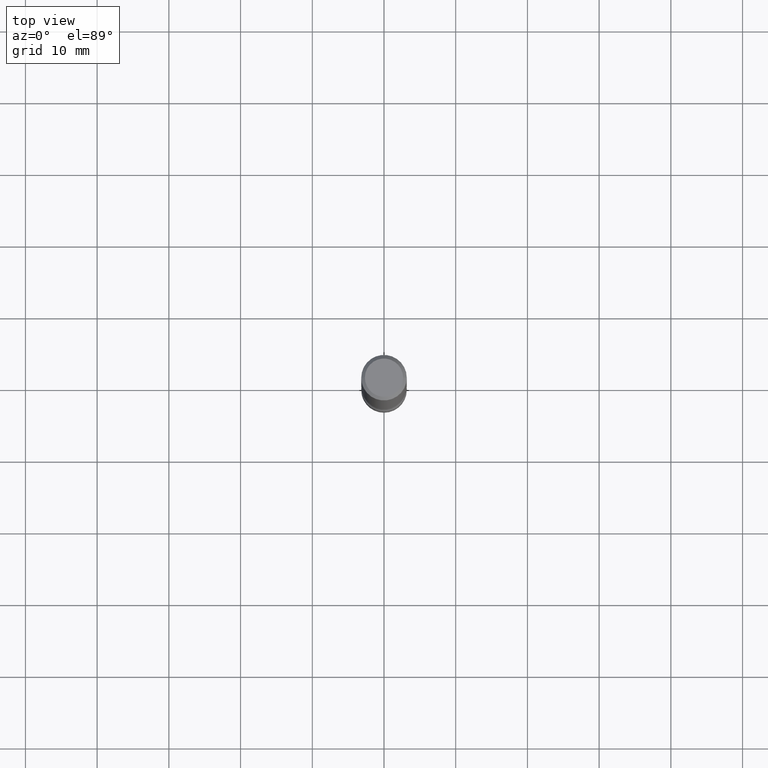
[diagram: clean part render]
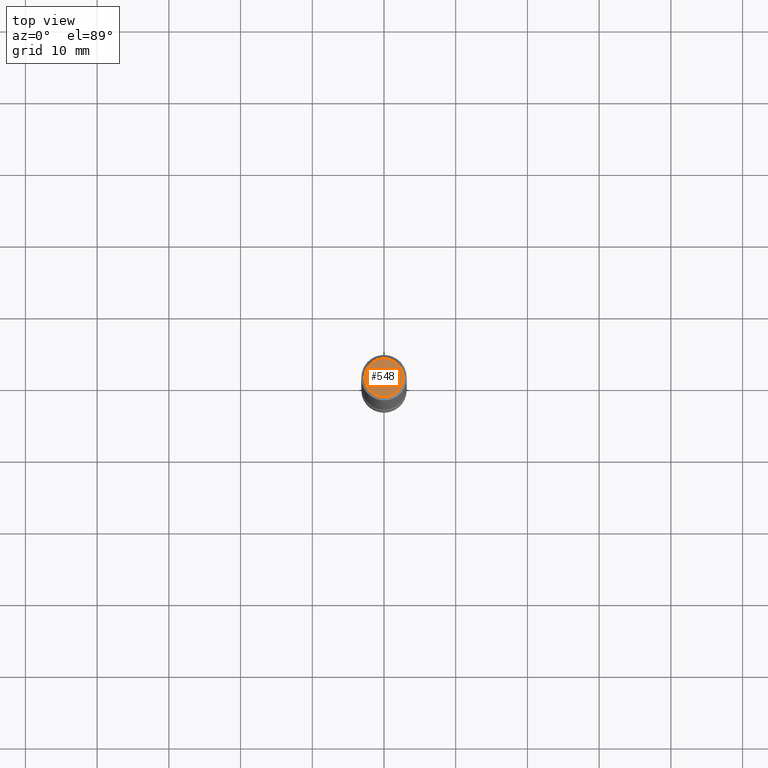
[diagram: same view with one face highlighted and labeled with its STEP entity id]
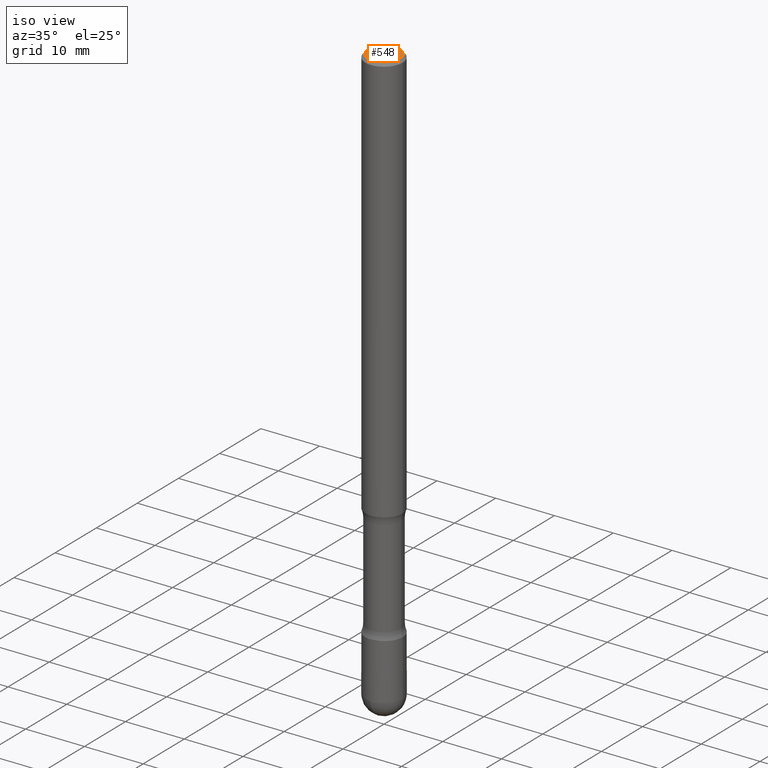
[diagram: same view with one face highlighted and labeled with its STEP entity id]
A machine part, top view. The second image highlights one B-rep face of the part: STEP entity #548.
A second angle (iso view) of the same face is appended — the face is thin or edge-on in the first view.
In plain terms, the highlighted planar face has unit normal (-0, 0, 1).
Its self-contained STEP definition (entity closure, byte-faithful):
#74 = FACE_OUTER_BOUND ( 'NONE', #400, .T. ) ;
#85 = AXIS2_PLACEMENT_3D ( 'NONE', #381, #507, #551 ) ;
#101 = DIRECTION ( 'NONE',  ( -1.000000000000000000, 6.982962677686265922E-15, -4.876176775795935793E-29 ) ) ;
#121 = AXIS2_PLACEMENT_3D ( 'NONE', #397, #274, #101 ) ;
#163 = DIRECTION ( 'NONE',  ( -2.438088387897960049E-29, 3.491481338843145188E-15, 1.000000000000000000 ) ) ;
#239 = ORIENTED_EDGE ( 'NONE', *, *, #564, .F. ) ;
#248 = PLANE ( 'NONE',  #280 ) ;
#274 = DIRECTION ( 'NONE',  ( 2.445468806185136597E-29, -3.491481338843145583E-15, -1.000000000000000000 ) ) ;
#280 = AXIS2_PLACEMENT_3D ( 'NONE', #549, #163, #502 ) ;
#311 = CIRCLE ( 'NONE', #121, 0.1049999999999997047 ) ;
#315 = EDGE_CURVE ( 'NONE', #414, #525, #311, .T. ) ;
#381 = CARTESIAN_POINT ( 'NONE',  ( 0.000000000000000000, 0.000000000000000000, 0.000000000000000000 ) ) ;
#397 = CARTESIAN_POINT ( 'NONE',  ( 0.000000000000000000, 0.000000000000000000, 0.000000000000000000 ) ) ;
#400 = EDGE_LOOP ( 'NONE', ( #239, #532 ) ) ;
#414 = VERTEX_POINT ( 'NONE', #461 ) ;
#461 = CARTESIAN_POINT ( 'NONE',  ( 0.1049999999999997047, -8.238720831321559881E-16, 5.444276250344137453E-30 ) ) ;
#495 = CARTESIAN_POINT ( 'NONE',  ( -0.1049999999999997047, 7.332110811570558550E-16, -5.119985614585718009E-30 ) ) ;
#497 = CIRCLE ( 'NONE', #85, 0.1049999999999997047 ) ;
#502 = DIRECTION ( 'NONE',  ( 1.000000000000000000, -6.982962677686265922E-15, 4.876176775795935793E-29 ) ) ;
#507 = DIRECTION ( 'NONE',  ( 2.445468806185136597E-29, -3.491481338843145583E-15, -1.000000000000000000 ) ) ;
#525 = VERTEX_POINT ( 'NONE', #495 ) ;
#532 = ORIENTED_EDGE ( 'NONE', *, *, #315, .F. ) ;
#548 = ADVANCED_FACE ( 'NONE', ( #74 ), #248, .T. ) ;
#549 = CARTESIAN_POINT ( 'NONE',  ( 7.332110811570558550E-16, 0.1049999999999997047, -3.900823592740815069E-16 ) ) ;
#551 = DIRECTION ( 'NONE',  ( -1.000000000000000000, 6.982962677686265922E-15, -4.876176775795935793E-29 ) ) ;
#564 = EDGE_CURVE ( 'NONE', #525, #414, #497, .T. ) ;